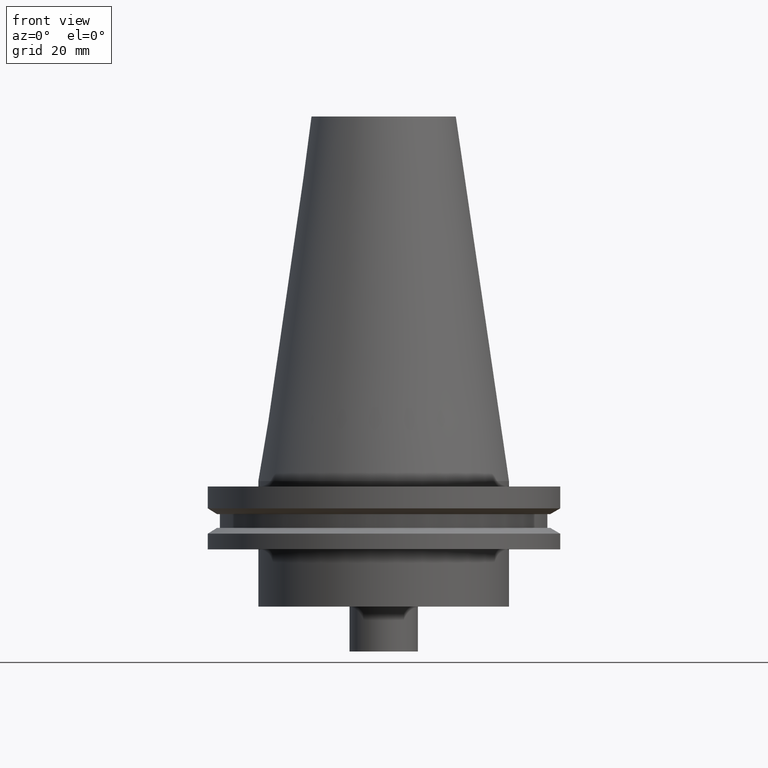
[diagram: clean part render]
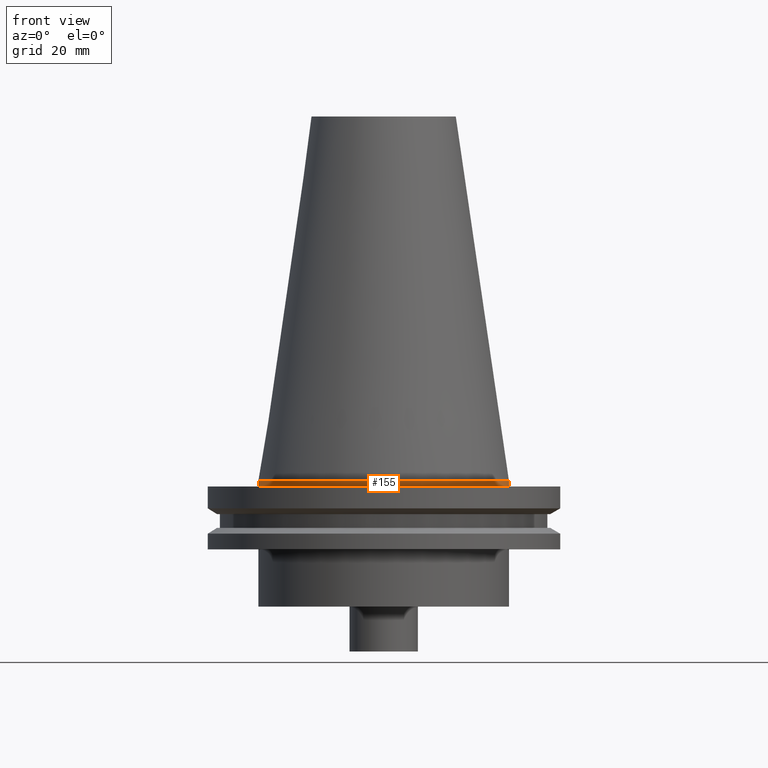
[diagram: same view with one face highlighted and labeled with its STEP entity id]
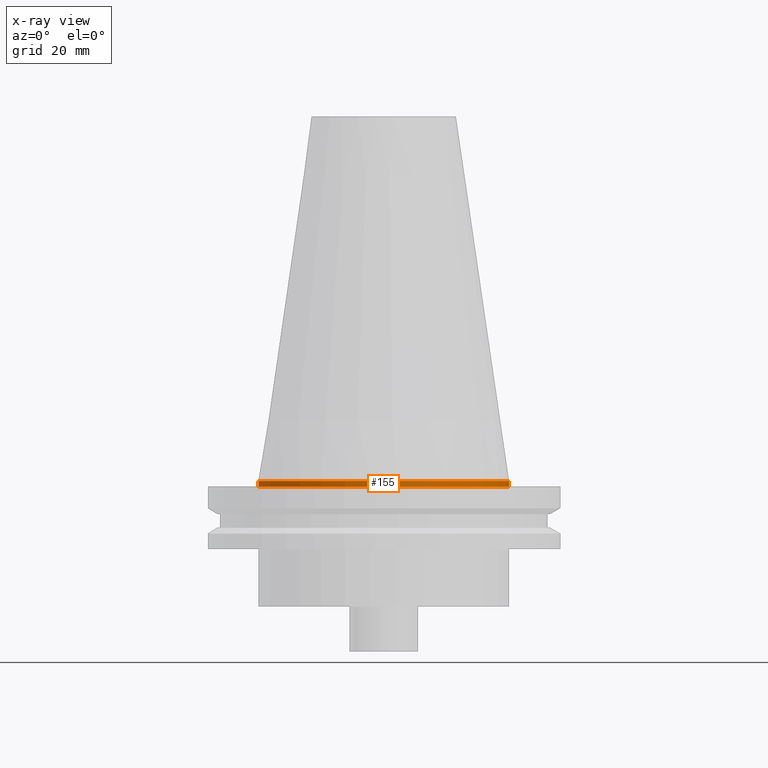
[diagram: x-ray of the same camera — body ghosted, the highlighted face saturated]
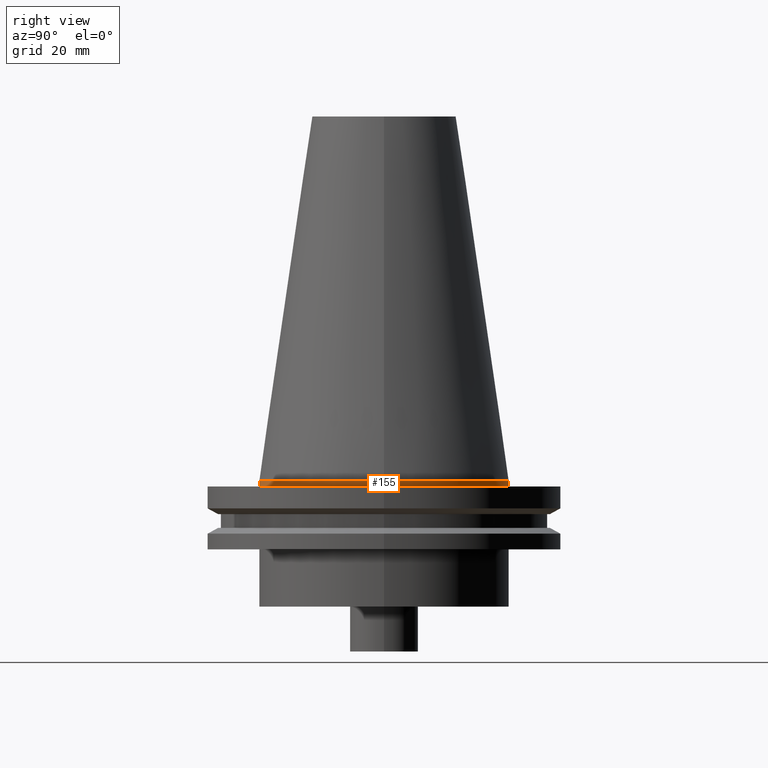
[diagram: same view with one face highlighted and labeled with its STEP entity id]
A machine part, front view. The second image highlights one B-rep face of the part: STEP entity #155.
The next image is the same camera in x-ray: the body ghosted, the highlighted face saturated — about 0% of this face is hidden behind the body in this view.
A second angle (right view) of the same face is appended — the face is thin or edge-on in the first view.
In plain terms, the highlighted cylindrical surface (bore or boss wall) has radius 34.925 mm, axis along (-0, -0, 1).
Its self-contained STEP definition (entity closure, byte-faithful):
#1 = CARTESIAN_POINT ( 'NONE',  ( 0.000000000000000000, 0.000000000000000000, 0.000000000000000000 ) ) ;
#2 = AXIS2_PLACEMENT_3D ( 'NONE', #110, #236, #205 ) ;
#4 = DIRECTION ( 'NONE',  ( -0.000000000000000000, -0.000000000000000000, 1.000000000000000000 ) ) ;
#9 = DIRECTION ( 'NONE',  ( -0.000000000000000000, -0.000000000000000000, 1.000000000000000000 ) ) ;
#31 = VERTEX_POINT ( 'NONE', #36 ) ;
#33 = AXIS2_PLACEMENT_3D ( 'NONE', #355, #9, #218 ) ;
#36 = CARTESIAN_POINT ( 'NONE',  ( 34.92499999999999005, 0.000000000000000000, 0.000000000000000000 ) ) ;
#53 = ORIENTED_EDGE ( 'NONE', *, *, #310, .F. ) ;
#57 = CYLINDRICAL_SURFACE ( 'NONE', #2, 34.92499999999999005 ) ;
#60 = CARTESIAN_POINT ( 'NONE',  ( 34.92499999999999005, 0.000000000000000000, -1.499999999999987566 ) ) ;
#81 = AXIS2_PLACEMENT_3D ( 'NONE', #1, #4, #191 ) ;
#110 = CARTESIAN_POINT ( 'NONE',  ( 0.000000000000000000, 0.000000000000000000, 101.5999999999999943 ) ) ;
#145 = FACE_OUTER_BOUND ( 'NONE', #331, .T. ) ;
#155 = ADVANCED_FACE ( 'NONE', ( #232, #145 ), #57, .T. ) ;
#191 = DIRECTION ( 'NONE',  ( 1.000000000000000000, 0.000000000000000000, 0.000000000000000000 ) ) ;
#205 = DIRECTION ( 'NONE',  ( 1.000000000000000000, 0.000000000000000000, 0.000000000000000000 ) ) ;
#218 = DIRECTION ( 'NONE',  ( 1.000000000000000000, 0.000000000000000000, 0.000000000000000000 ) ) ;
#232 = FACE_OUTER_BOUND ( 'NONE', #348, .T. ) ;
#236 = DIRECTION ( 'NONE',  ( -0.000000000000000000, -0.000000000000000000, 1.000000000000000000 ) ) ;
#245 = CIRCLE ( 'NONE', #81, 34.92499999999999005 ) ;
#247 = VERTEX_POINT ( 'NONE', #60 ) ;
#282 = EDGE_CURVE ( 'NONE', #247, #247, #342, .T. ) ;
#310 = EDGE_CURVE ( 'NONE', #31, #31, #245, .T. ) ;
#331 = EDGE_LOOP ( 'NONE', ( #332 ) ) ;
#332 = ORIENTED_EDGE ( 'NONE', *, *, #282, .T. ) ;
#342 = CIRCLE ( 'NONE', #33, 34.92499999999999005 ) ;
#348 = EDGE_LOOP ( 'NONE', ( #53 ) ) ;
#355 = CARTESIAN_POINT ( 'NONE',  ( 0.000000000000000000, 0.000000000000000000, -1.499999999999987566 ) ) ;